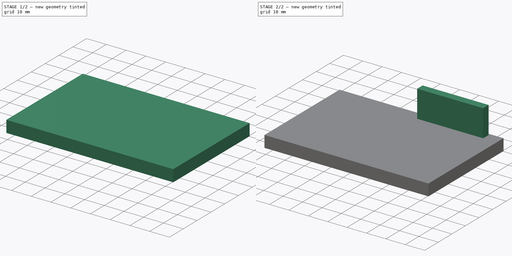
[diagram: build sequence overview — one tinted view per stage of 2, left to right]
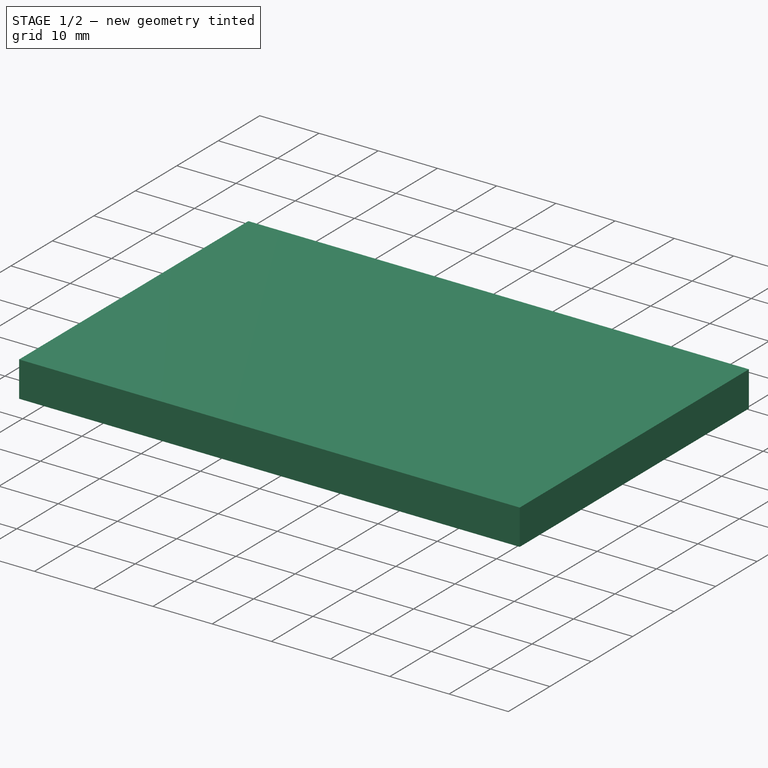
[diagram: stage 1 of 2 — iso view after this stage's code; geometry added in this stage tinted green]
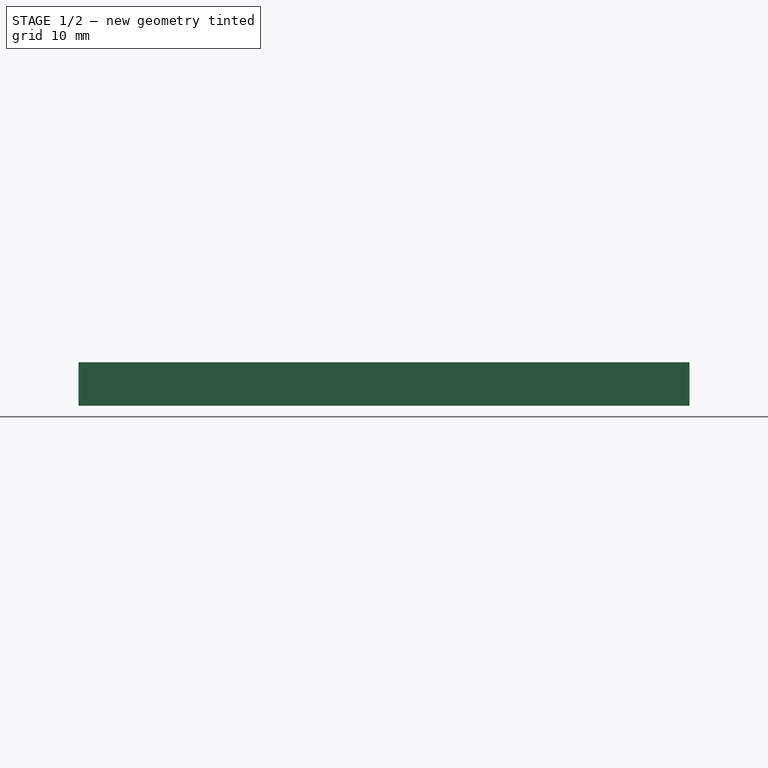
[diagram: stage 1 of 2 — front view after this stage's code; geometry added in this stage tinted green]
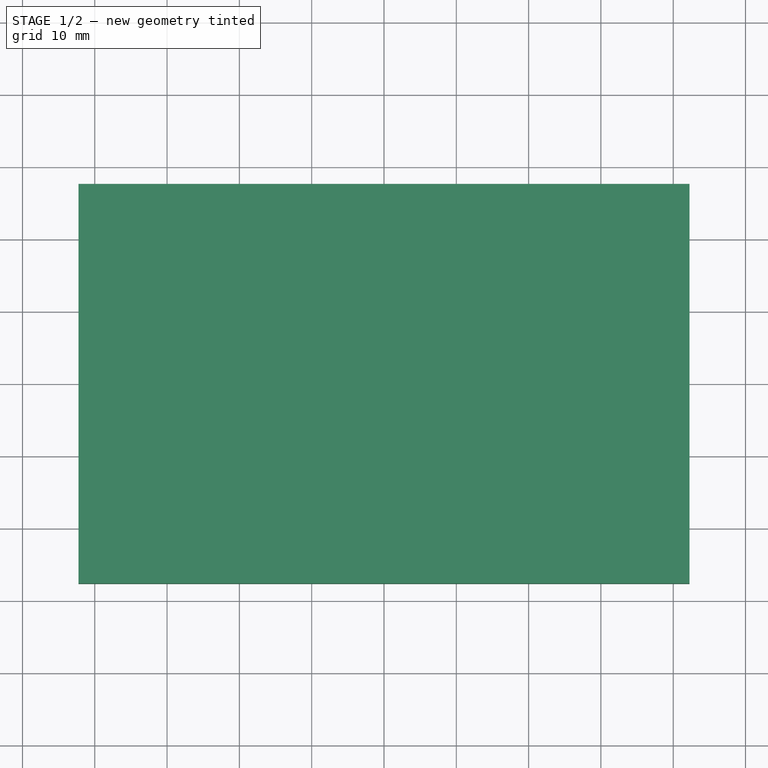
[diagram: stage 1 of 2 — top view after this stage's code; geometry added in this stage tinted green]
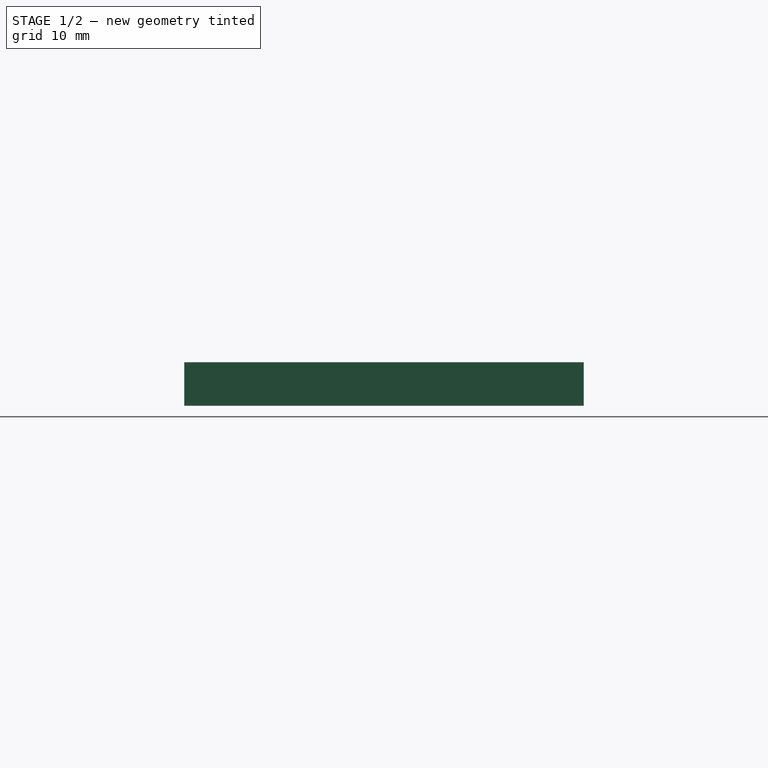
[diagram: stage 1 of 2 — right view after this stage's code; geometry added in this stage tinted green]
FCSTD DOCUMENT  (FreeCAD 0.21R33668 +26 (Git))
Label: Display_Berrybase
License: All rights reserved
LicenseURL: http://en.wikipedia.org/wiki/All_rights_reserved
objects: App::DocumentObjectGroup×3, Sketcher::SketchObject×2, PartDesign::Pad×2, PartDesign::CoordinateSystem×2, Spreadsheet::Sheet×1, App::FeaturePython×1, PartDesign::Body×1, App::Part×1
note: 9 computed .brp shape members not serialized (recipe doc carries the construction recipe); baked Part::Feature solids carry a one-line shape summary decoded from their .brp

FEATURE [Sketcher::SketchObject] Sketch
  FullyConstrained = true
  MapMode = 5
  Support = -> [XY_Plane]
  expr: Constraints[7] = <<Spreadsheet>>.width
  expr: Constraints[8] = <<Spreadsheet>>.height
  sketch-geometry (4):
    g0: LineSegment StartX=-42.26 StartY=27.63 StartZ=0 EndX=42.26 EndY=27.63 EndZ=0
    g1: LineSegment StartX=42.26 StartY=27.63 StartZ=0 EndX=42.26 EndY=-27.63 EndZ=0
    g2: LineSegment StartX=42.26 StartY=-27.63 StartZ=0 EndX=-42.26 EndY=-27.63 EndZ=0
    g3: LineSegment StartX=-42.26 StartY=-27.63 StartZ=0 EndX=-42.26 EndY=27.63 EndZ=0
  constraints (9):
    c: Coincident(g0,g1)
    c: Coincident(g1,g2)
    c: Coincident(g2,g3)
    c: Coincident(g3,g0)
    c: Symmetric(g0,g0,g-2)
    c: Symmetric(g0,g2,g-1)
    c: Symmetric(g0,g1,g-1)
    c: DistanceX(g0,g0) = 84.52
    c: DistanceY(g3,g3) = 55.26
FEATURE [PartDesign::Pad] Pad
  Direction = (0,0,1)
  Length = 6
  Length2 = 10
  Profile = -> Sketch
  ReferenceAxis = -> Sketch [N_Axis]
  Reversed = true
  Type = 0
  expr: Length = <<Spreadsheet>>.thickness
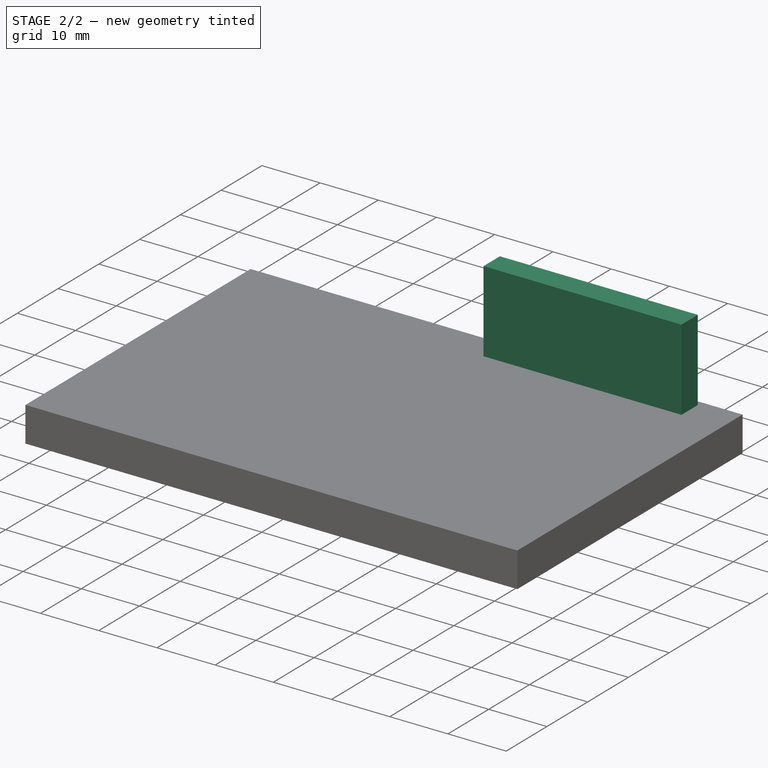
[diagram: stage 2 of 2 — iso view after this stage's code; geometry added in this stage tinted green]
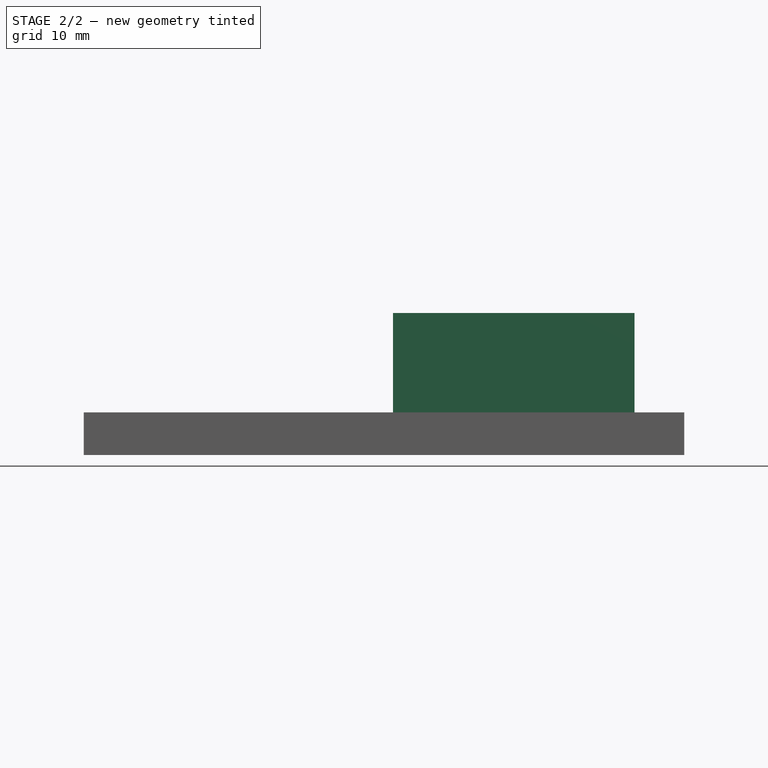
[diagram: stage 2 of 2 — front view after this stage's code; geometry added in this stage tinted green]
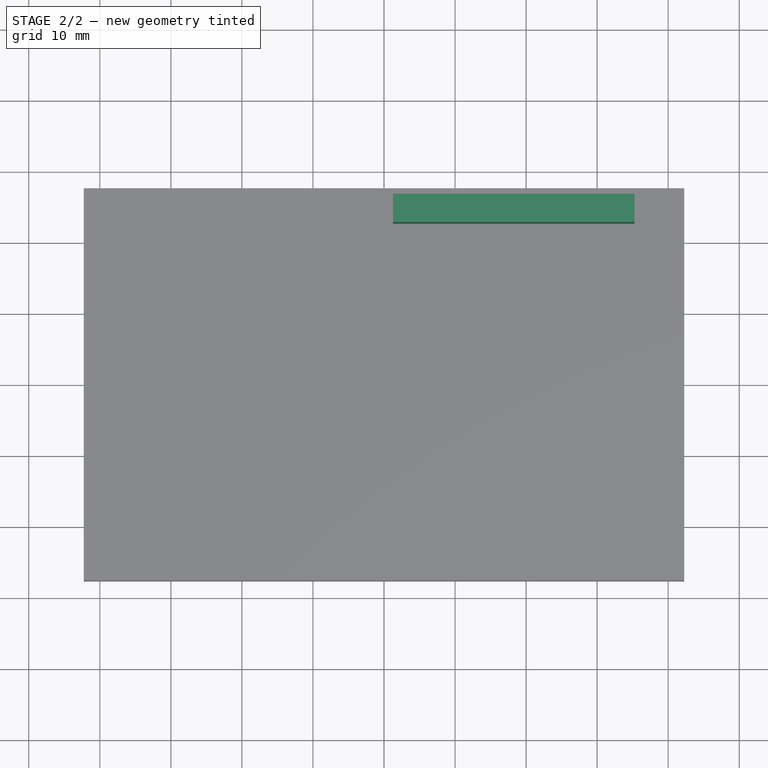
[diagram: stage 2 of 2 — top view after this stage's code; geometry added in this stage tinted green]
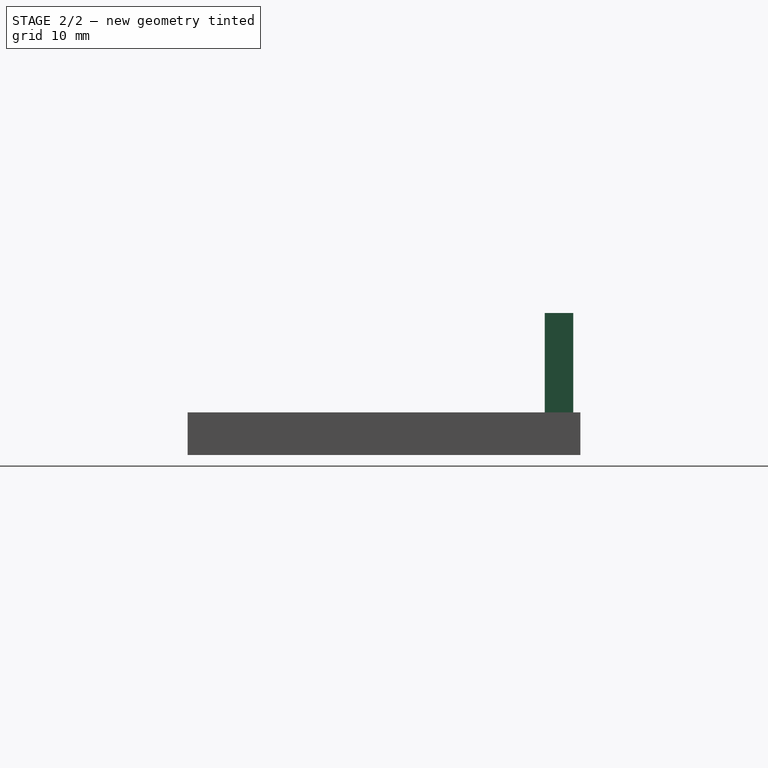
[diagram: stage 2 of 2 — right view after this stage's code; geometry added in this stage tinted green]
FEATURE [Spreadsheet::Sheet] Spreadsheet
  cells = B2='width; C2(width)==84.52 mm; B3='height; C3(height)==55.26 mm; B4='thickness; C4(thickness)==6 mm; B5='connector_width; C5(connector_width)==34 mm; B6='connector_height; C6(connector_height)==4 mm; B7='connector_length; C7(connector_length)==14 mm; B8='connector_offset_x; C8(connector_offset_x)==7 mm; B9='connector_offset_y; C9(connector_offset_y)==1 mm
FEATURE [App::DocumentObjectGroup] Parts
FEATURE [PartDesign::CoordinateSystem] LCS_Origin
  AttacherType = Attacher::AttachEngine3D
  MapMode = 2
  Support = -> [X_Axis001]
FEATURE [App::DocumentObjectGroup] Constraints
FEATURE [App::FeaturePython] Variables  # WARN: FeaturePython — macro-defined, semantics opaque (R4)
  Type = App::PropertyContainer
FEATURE [App::DocumentObjectGroup] Configurations
FEATURE [Sketcher::SketchObject] Sketch001
  ExternalGeometry = -> [Pad]
  FullyConstrained = true
  MapMode = 5
  Support = -> [Pad]
  expr: Constraints[10] = <<Spreadsheet>>.connector_width
  expr: Constraints[11] = <<Spreadsheet>>.connector_height
  expr: Constraints[8] = <<Spreadsheet>>.connector_offset_x
  expr: Constraints[9] = <<Spreadsheet>>.connector_offset_y
  sketch-geometry (4):
    g0: LineSegment StartX=1.26 StartY=26.63 StartZ=0 EndX=35.26 EndY=26.63 EndZ=0
    g1: LineSegment StartX=35.26 StartY=26.63 StartZ=0 EndX=35.26 EndY=22.63 EndZ=0
    g2: LineSegment StartX=35.26 StartY=22.63 StartZ=0 EndX=1.26 EndY=22.63 EndZ=0
    g3: LineSegment StartX=1.26 StartY=22.63 StartZ=0 EndX=1.26 EndY=26.63 EndZ=0
  constraints (12):
    c: Coincident(g0,g1)
    c: Coincident(g1,g2)
    c: Coincident(g2,g3)
    c: Coincident(g3,g0)
    c: Horizontal(g0)
    c: Horizontal(g2)
    c: Vertical(g1)
    c: Vertical(g3)
    c: DistanceX(g0,g-4) = 7
    c: DistanceY(g0,g-4) = 1
    c: DistanceX(g0,g0) = 34
    c: DistanceY(g3,g3) = 4
FEATURE [PartDesign::Pad] Pad001
  BaseFeature = -> Pad
  Direction = (0,0,1)
  Length = 14
  Length2 = 10
  Profile = -> Sketch001
  ReferenceAxis = -> Sketch001 [N_Axis]
  Type = 0
  expr: Length = <<Spreadsheet>>.connector_length
FEATURE [PartDesign::Body] Body
  Group = -> [Sketch,Pad,Sketch001,Pad001]
  Origin = -> Origin
  Tip = -> Pad001
FEATURE [PartDesign::CoordinateSystem] LCS_Connector
  AttacherType = Attacher::AttachEngine3D
  MapMode = 1
  Placement = pos=(35.26,26.63,0) rot=(0,0,1;0rad)
  Support = -> [Pad001]
FEATURE [App::Part] Model
  AssemblyType = Part::Link
  Group = -> [LCS_Origin,Constraints,Variables,Configurations,Body,LCS_Connector]
  Origin = -> Origin001
  Type = Assembly
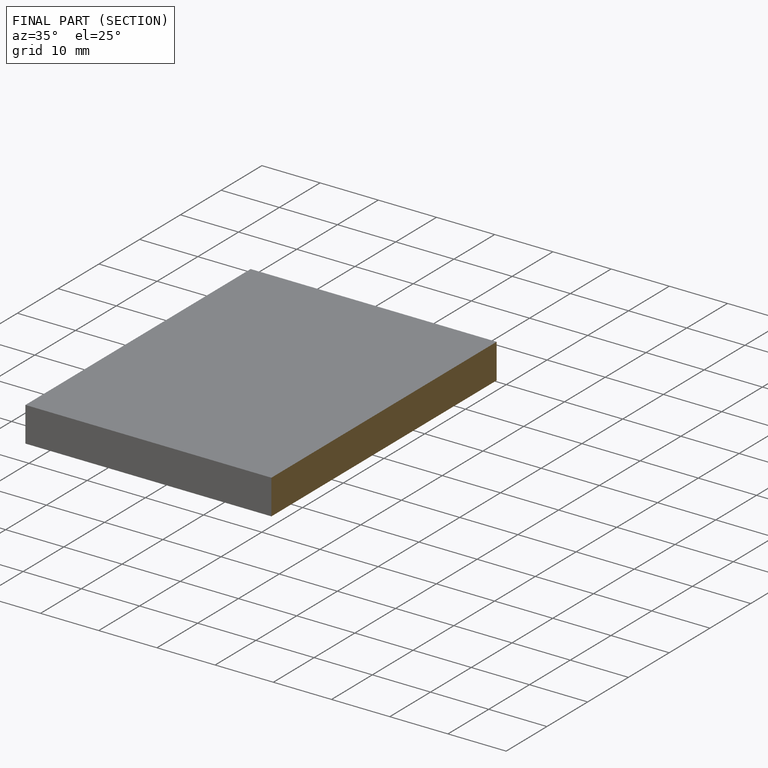
[diagram: finished part — half-section view (interior)]
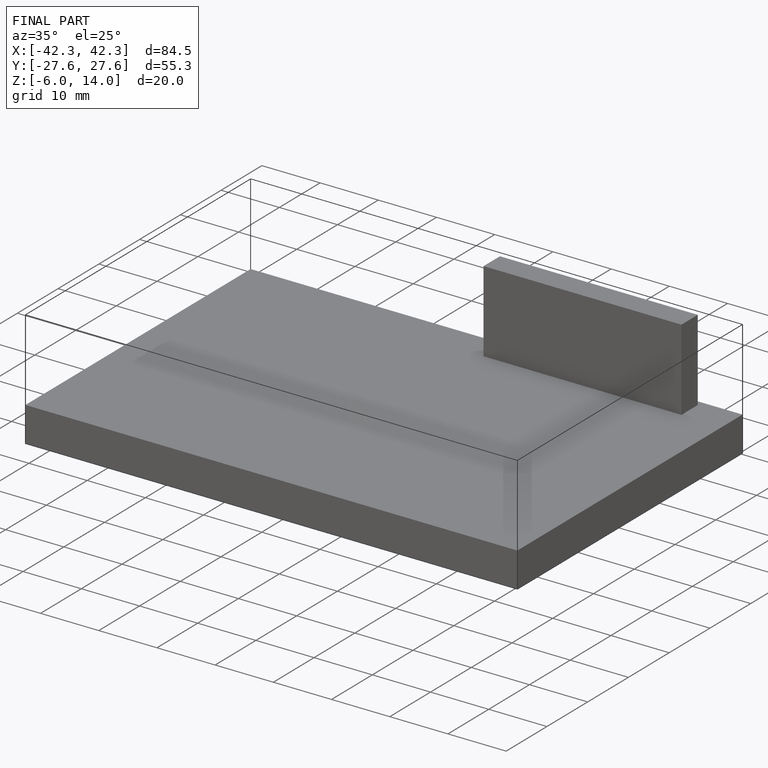
[diagram: finished part — iso view with bounding-box wireframe]
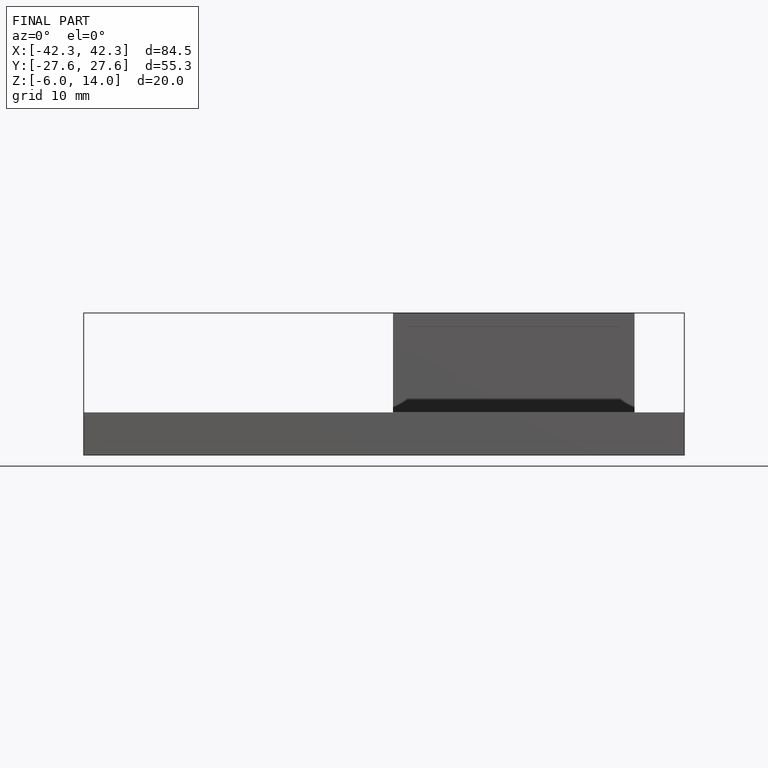
[diagram: finished part — front view with bounding-box wireframe]
